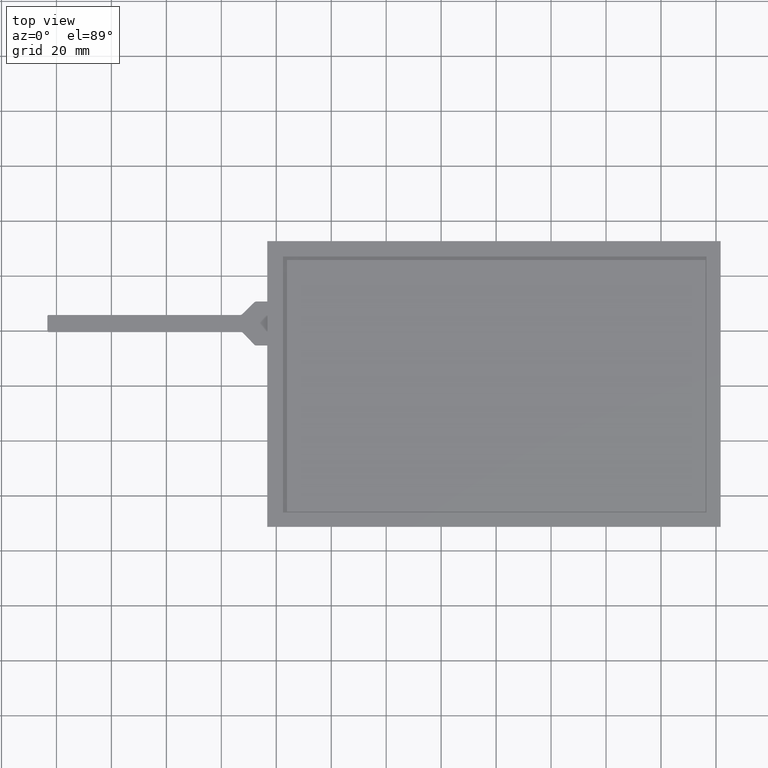
[diagram: clean part render]
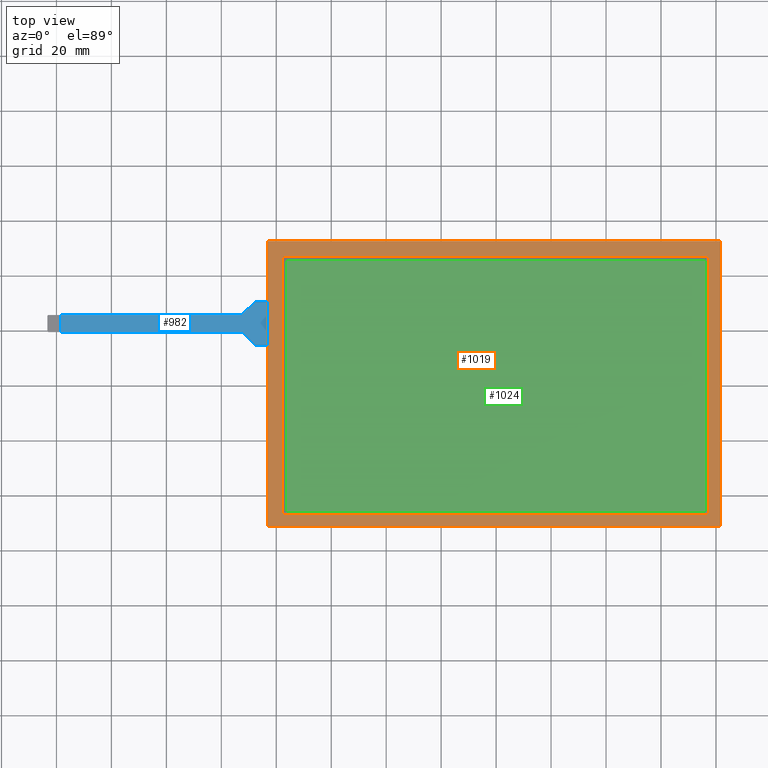
[diagram: same view with three faces highlighted in distinct colors, each labeled with its STEP entity id]
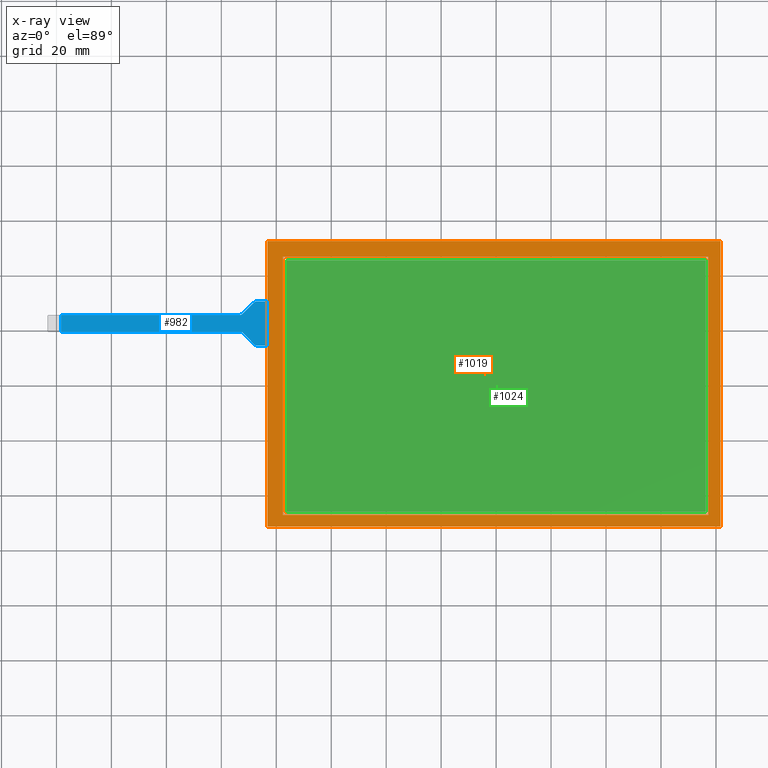
[diagram: x-ray of the same camera — body ghosted, the three highlighted faces saturated]
A machine part, top view with three faces highlighted in distinct colors.
The next image is the same camera in x-ray (body ghosted, the three faces saturated) — at least one of them is partly hidden behind the body in this view.
Their STEP definitions:

[orange] entity #1019 — the highlighted planar face has unit normal (0, 0, 1).
#47=FACE_BOUND('',#191,.T.);
#87=PLANE('',#1102);
#138=FACE_OUTER_BOUND('',#190,.T.);
#190=EDGE_LOOP('',(#933,#934,#935,#936));
#191=EDGE_LOOP('',(#937,#938,#939,#940));
#301=LINE('',#1596,#427);
#305=LINE('',#1604,#431);
#308=LINE('',#1610,#434);
#311=LINE('',#1615,#437);
#313=LINE('',#1621,#439);
#314=LINE('',#1623,#440);
#315=LINE('',#1625,#441);
#316=LINE('',#1626,#442);
#427=VECTOR('',#1317,10.);
#431=VECTOR('',#1323,10.);
#434=VECTOR('',#1328,10.);
#437=VECTOR('',#1333,10.);
#439=VECTOR('',#1339,10.);
#440=VECTOR('',#1340,10.);
#441=VECTOR('',#1341,10.);
#442=VECTOR('',#1342,10.);
#539=VERTEX_POINT('',#1594);
#540=VERTEX_POINT('',#1595);
#543=VERTEX_POINT('',#1603);
#545=VERTEX_POINT('',#1609);
#547=VERTEX_POINT('',#1619);
#548=VERTEX_POINT('',#1620);
#549=VERTEX_POINT('',#1622);
#550=VERTEX_POINT('',#1624);
#669=EDGE_CURVE('',#539,#540,#301,.T.);
#673=EDGE_CURVE('',#543,#539,#305,.T.);
#676=EDGE_CURVE('',#545,#543,#308,.T.);
#679=EDGE_CURVE('',#540,#545,#311,.T.);
#681=EDGE_CURVE('',#547,#548,#313,.T.);
#682=EDGE_CURVE('',#548,#549,#314,.T.);
#683=EDGE_CURVE('',#549,#550,#315,.T.);
#684=EDGE_CURVE('',#550,#547,#316,.T.);
#933=ORIENTED_EDGE('',*,*,#681,.T.);
#934=ORIENTED_EDGE('',*,*,#682,.T.);
#935=ORIENTED_EDGE('',*,*,#683,.T.);
#936=ORIENTED_EDGE('',*,*,#684,.T.);
#937=ORIENTED_EDGE('',*,*,#669,.T.);
#938=ORIENTED_EDGE('',*,*,#679,.T.);
#939=ORIENTED_EDGE('',*,*,#676,.T.);
#940=ORIENTED_EDGE('',*,*,#673,.T.);
#1019=ADVANCED_FACE('',(#138,#47),#87,.T.);
#1102=AXIS2_PLACEMENT_3D('',#1618,#1337,#1338);
#1317=DIRECTION('',(-1.89094830679184E-16,1.,0.));
#1323=DIRECTION('',(-1.,-1.14677652640429E-16,0.));
#1328=DIRECTION('',(2.83642246018775E-16,-1.,0.));
#1333=DIRECTION('',(1.,0.,0.));
#1337=DIRECTION('center_axis',(0.,0.,1.));
#1338=DIRECTION('ref_axis',(1.,0.,0.));
#1339=DIRECTION('',(-1.,5.38289951333409E-17,0.));
#1340=DIRECTION('',(1.70803542250024E-16,-1.,0.));
#1341=DIRECTION('',(1.,1.07657990266682E-16,0.));
#1342=DIRECTION('',(0.,1.,0.));
#1594=CARTESIAN_POINT('',(-77.6,-46.97,0.));
#1595=CARTESIAN_POINT('',(-77.6,46.97,0.));
#1596=CARTESIAN_POINT('',(-77.6,-23.145,0.));
#1603=CARTESIAN_POINT('',(77.3,-46.97,0.));
#1604=CARTESIAN_POINT('',(38.25,-46.97,0.));
#1609=CARTESIAN_POINT('',(77.3,46.97,0.));
#1610=CARTESIAN_POINT('',(77.3,23.825,0.));
#1615=CARTESIAN_POINT('',(-39.2,46.97,0.));
#1618=CARTESIAN_POINT('Origin',(-0.799999999999992,0.680000000000027,0.));
#1619=CARTESIAN_POINT('',(81.7,52.68,0.));
#1620=CARTESIAN_POINT('',(-83.3,52.68,0.));
#1621=CARTESIAN_POINT('',(81.7,52.68,0.));
#1622=CARTESIAN_POINT('',(-83.3,-51.32,0.));
#1623=CARTESIAN_POINT('',(-83.3,52.68,0.));
#1624=CARTESIAN_POINT('',(81.7,-51.32,0.));
#1625=CARTESIAN_POINT('',(-83.3,-51.32,0.));
#1626=CARTESIAN_POINT('',(81.7,-51.32,0.));

[blue] entity #982 — the highlighted planar face has unit normal (0, 0, 1).
#53=PLANE('',#1059);
#101=FACE_OUTER_BOUND('',#152,.T.);
#152=EDGE_LOOP('',(#744,#745,#746,#747,#748,#749,#750,#751,#752,#753,#754,
#755));
#230=LINE('',#1437,#356);
#234=LINE('',#1450,#360);
#235=LINE('',#1454,#361);
#236=LINE('',#1455,#362);
#237=LINE('',#1459,#363);
#238=LINE('',#1463,#364);
#239=LINE('',#1465,#365);
#240=LINE('',#1466,#366);
#356=VECTOR('',#1162,10.);
#360=VECTOR('',#1174,10.);
#361=VECTOR('',#1177,10.);
#362=VECTOR('',#1178,10.);
#363=VECTOR('',#1181,10.);
#364=VECTOR('',#1184,10.);
#365=VECTOR('',#1185,10.);
#366=VECTOR('',#1186,10.);
#456=CIRCLE('',#1058,1.);
#457=CIRCLE('',#1060,1.);
#458=CIRCLE('',#1061,1.);
#459=CIRCLE('',#1062,1.);
#493=VERTEX_POINT('',#1434);
#494=VERTEX_POINT('',#1436);
#497=VERTEX_POINT('',#1443);
#498=VERTEX_POINT('',#1445);
#499=VERTEX_POINT('',#1449);
#500=VERTEX_POINT('',#1451);
#501=VERTEX_POINT('',#1453);
#502=VERTEX_POINT('',#1456);
#503=VERTEX_POINT('',#1458);
#504=VERTEX_POINT('',#1460);
#505=VERTEX_POINT('',#1462);
#506=VERTEX_POINT('',#1464);
#590=EDGE_CURVE('',#494,#493,#230,.T.);
#594=EDGE_CURVE('',#497,#498,#456,.T.);
#596=EDGE_CURVE('',#497,#499,#234,.T.);
#597=EDGE_CURVE('',#500,#499,#457,.T.);
#598=EDGE_CURVE('',#500,#501,#235,.T.);
#599=EDGE_CURVE('',#501,#494,#236,.T.);
#600=EDGE_CURVE('',#502,#493,#458,.T.);
#601=EDGE_CURVE('',#502,#503,#237,.T.);
#602=EDGE_CURVE('',#504,#503,#459,.T.);
#603=EDGE_CURVE('',#504,#505,#238,.T.);
#604=EDGE_CURVE('',#506,#505,#239,.T.);
#605=EDGE_CURVE('',#506,#498,#240,.T.);
#744=ORIENTED_EDGE('',*,*,#594,.F.);
#745=ORIENTED_EDGE('',*,*,#596,.T.);
#746=ORIENTED_EDGE('',*,*,#597,.F.);
#747=ORIENTED_EDGE('',*,*,#598,.T.);
#748=ORIENTED_EDGE('',*,*,#599,.T.);
#749=ORIENTED_EDGE('',*,*,#590,.T.);
#750=ORIENTED_EDGE('',*,*,#600,.F.);
#751=ORIENTED_EDGE('',*,*,#601,.T.);
#752=ORIENTED_EDGE('',*,*,#602,.F.);
#753=ORIENTED_EDGE('',*,*,#603,.T.);
#754=ORIENTED_EDGE('',*,*,#604,.F.);
#755=ORIENTED_EDGE('',*,*,#605,.T.);
#982=ADVANCED_FACE('',(#101),#53,.T.);
#1058=AXIS2_PLACEMENT_3D('',#1446,#1169,#1170);
#1059=AXIS2_PLACEMENT_3D('',#1448,#1172,#1173);
#1060=AXIS2_PLACEMENT_3D('',#1452,#1175,#1176);
#1061=AXIS2_PLACEMENT_3D('',#1457,#1179,#1180);
#1062=AXIS2_PLACEMENT_3D('',#1461,#1182,#1183);
#1162=DIRECTION('',(1.,1.87997180435454E-16,0.));
#1169=DIRECTION('center_axis',(0.,0.,-1.));
#1170=DIRECTION('ref_axis',(-0.376366215351622,0.926470977387795,0.));
#1172=DIRECTION('center_axis',(0.,0.,1.));
#1173=DIRECTION('ref_axis',(1.,0.,0.));
#1174=DIRECTION('',(-0.716696943883791,-0.697384750785127,0.));
#1175=DIRECTION('center_axis',(0.,0.,1.));
#1176=DIRECTION('ref_axis',(0.376366215351622,-0.926470977387795,0.));
#1177=DIRECTION('',(-1.,0.,0.));
#1178=DIRECTION('',(0.,-1.,0.));
#1179=DIRECTION('center_axis',(0.,0.,1.));
#1180=DIRECTION('ref_axis',(0.388982807598791,0.921245013768086,0.));
#1181=DIRECTION('',(0.697384750785128,-0.716696943883791,0.));
#1182=DIRECTION('center_axis',(0.,0.,-1.));
#1183=DIRECTION('ref_axis',(-0.38898280759879,-0.921245013768087,0.));
#1184=DIRECTION('',(1.,-5.05796366571825E-16,0.));
#1185=DIRECTION('',(1.70803542250024E-16,-1.,0.));
#1186=DIRECTION('',(-1.,0.,0.));
#1434=CARTESIAN_POINT('',(-92.8558737223424,19.555,-0.2));
#1436=CARTESIAN_POINT('',(-158.3,19.555,-0.2));
#1437=CARTESIAN_POINT('',(-163.3,19.555,-0.2));
#1443=CARTESIAN_POINT('',(-87.9811483715164,30.3966969438838,-0.2));
#1445=CARTESIAN_POINT('',(-87.2837636207312,30.68,-0.2));
#1446=CARTESIAN_POINT('Origin',(-87.2837636207312,29.68,-0.2));
#1448=CARTESIAN_POINT('Origin',(-123.3,22.68,-0.2));
#1449=CARTESIAN_POINT('',(-92.4088516284836,26.0883030561162,-0.2));
#1450=CARTESIAN_POINT('',(-87.69,30.68,-0.2));
#1451=CARTESIAN_POINT('',(-93.1062363792688,25.805,-0.2));
#1452=CARTESIAN_POINT('Origin',(-93.1062363792688,26.805,-0.2));
#1453=CARTESIAN_POINT('',(-158.3,25.805,-0.2));
#1454=CARTESIAN_POINT('',(-92.7,25.805,-0.2));
#1455=CARTESIAN_POINT('',(-158.3,24.2425,-0.2));
#1456=CARTESIAN_POINT('',(-92.1391767784586,19.2523847507852,-0.2));
#1457=CARTESIAN_POINT('Origin',(-92.8558737223424,18.555,-0.2));
#1458=CARTESIAN_POINT('',(-87.9844609460923,14.9826152492149,-0.2));
#1459=CARTESIAN_POINT('',(-92.4336377245509,19.555,-0.2));
#1460=CARTESIAN_POINT('',(-87.2677640022085,14.68,-0.2));
#1461=CARTESIAN_POINT('Origin',(-87.2677640022085,15.68,-0.2));
#1462=CARTESIAN_POINT('',(-83.3,14.68,-0.2));
#1463=CARTESIAN_POINT('',(-87.69,14.68,-0.2));
#1464=CARTESIAN_POINT('',(-83.3,30.68,-0.2));
#1465=CARTESIAN_POINT('',(-83.3,-14.32,-0.2));
#1466=CARTESIAN_POINT('',(-83.3,30.68,-0.2));

[green] entity #1024 — the highlighted planar face has unit normal (0, 0, 1).
#92=PLANE('',#1107);
#143=FACE_OUTER_BOUND('',#197,.T.);
#197=EDGE_LOOP('',(#961,#962,#963,#964));
#289=LINE('',#1572,#415);
#293=LINE('',#1580,#419);
#296=LINE('',#1586,#422);
#299=LINE('',#1591,#425);
#415=VECTOR('',#1297,10.);
#419=VECTOR('',#1303,10.);
#422=VECTOR('',#1308,10.);
#425=VECTOR('',#1313,10.);
#531=VERTEX_POINT('',#1570);
#532=VERTEX_POINT('',#1571);
#535=VERTEX_POINT('',#1579);
#537=VERTEX_POINT('',#1585);
#657=EDGE_CURVE('',#531,#532,#289,.T.);
#661=EDGE_CURVE('',#535,#531,#293,.T.);
#664=EDGE_CURVE('',#537,#535,#296,.T.);
#667=EDGE_CURVE('',#532,#537,#299,.T.);
#961=ORIENTED_EDGE('',*,*,#657,.T.);
#962=ORIENTED_EDGE('',*,*,#667,.T.);
#963=ORIENTED_EDGE('',*,*,#664,.T.);
#964=ORIENTED_EDGE('',*,*,#661,.T.);
#1024=ADVANCED_FACE('',(#143),#92,.T.);
#1107=AXIS2_PLACEMENT_3D('',#1643,#1359,#1360);
#1297=DIRECTION('',(1.,0.,0.));
#1303=DIRECTION('',(0.,-1.,0.));
#1308=DIRECTION('',(-1.,0.,0.));
#1313=DIRECTION('',(0.,1.,0.));
#1359=DIRECTION('center_axis',(0.,0.,1.));
#1360=DIRECTION('ref_axis',(1.,0.,0.));
#1570=CARTESIAN_POINT('',(-76.2,-45.72,0.));
#1571=CARTESIAN_POINT('',(76.2,-45.72,0.));
#1572=CARTESIAN_POINT('',(-38.5,-45.72,0.));
#1579=CARTESIAN_POINT('',(-76.2,45.72,0.));
#1580=CARTESIAN_POINT('',(-76.2,23.2,0.));
#1585=CARTESIAN_POINT('',(76.2,45.72,0.));
#1586=CARTESIAN_POINT('',(37.7,45.72,0.));
#1591=CARTESIAN_POINT('',(76.2,-22.52,0.));
#1643=CARTESIAN_POINT('Origin',(-0.799999999999992,0.680000000000027,0.));